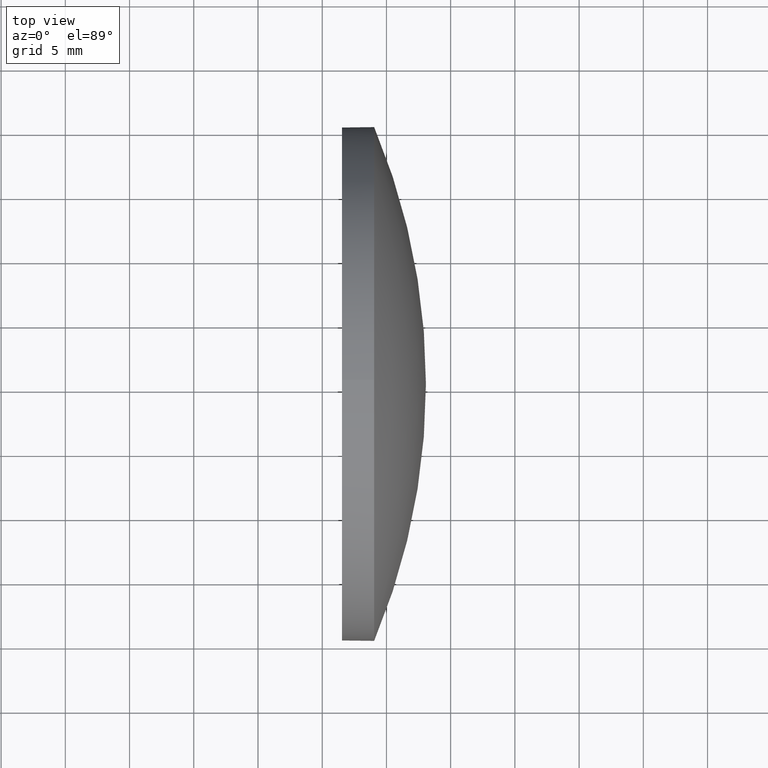
[diagram: clean part render]
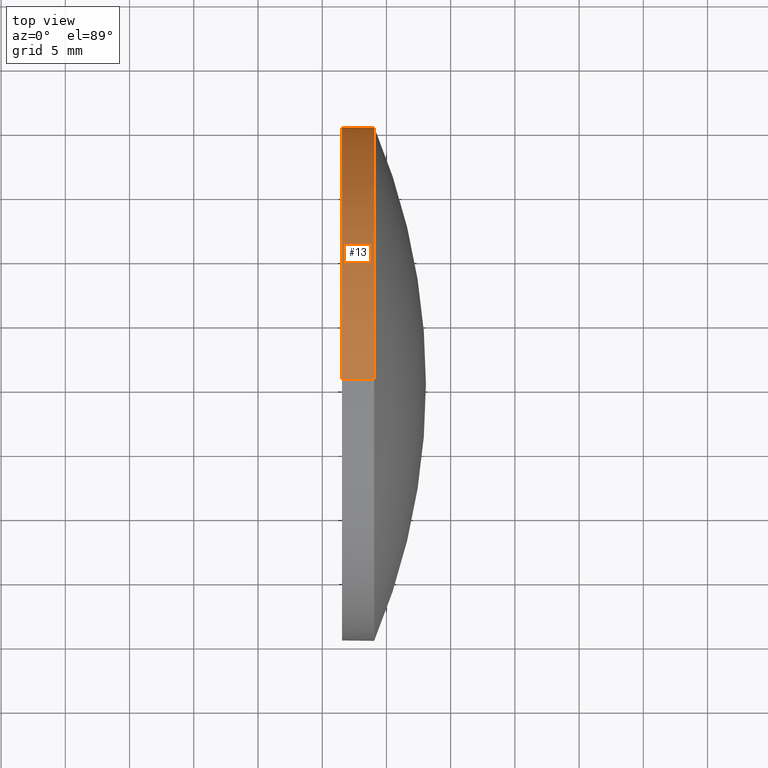
[diagram: same view with one face highlighted and labeled with its STEP entity id]
A machine part, top view. The second image highlights one B-rep face of the part: STEP entity #13.
In plain terms, the highlighted cylindrical surface (partial cylindrical patch) has radius 20 mm, axis along (-1, -0, -0).
Its self-contained STEP definition (entity closure, byte-faithful):
#3 = DIRECTION ( 'NONE',  ( 0.0000000000000000000, 0.0000000000000000000, 1.000000000000000000 ) ) ;
#4 = DIRECTION ( 'NONE',  ( 0.0000000000000000000, 0.0000000000000000000, 1.000000000000000000 ) ) ;
#13 = ADVANCED_FACE ( 'NONE', ( #168 ), #145, .T. ) ;
#14 = VECTOR ( 'NONE', #176, 1000.000000000000000 ) ;
#17 = AXIS2_PLACEMENT_3D ( 'NONE', #85, #162, #3 ) ;
#19 = CARTESIAN_POINT ( 'NONE',  ( 564.0452585807870500, 145.2757761791659700, 2.449293598294695500E-015 ) ) ;
#20 = CARTESIAN_POINT ( 'NONE',  ( 564.0452585807870500, 125.2757761791659600, 20.00000000000001800 ) ) ;
#21 = CARTESIAN_POINT ( 'NONE',  ( 564.0452585807870500, 125.2757761791659600, 0.0000000000000000000 ) ) ;
#24 = VERTEX_POINT ( 'NONE', #19 ) ;
#29 = LINE ( 'NONE', #164, #14 ) ;
#33 = CARTESIAN_POINT ( 'NONE',  ( 561.5452585807870500, 125.2757761791659600, 20.00000000000001800 ) ) ;
#48 = VERTEX_POINT ( 'NONE', #115 ) ;
#52 = CARTESIAN_POINT ( 'NONE',  ( 561.5452585807870500, 125.2757761791659600, -20.00000000000001800 ) ) ;
#55 = ORIENTED_EDGE ( 'NONE', *, *, #112, .T. ) ;
#70 = CIRCLE ( 'NONE', #17, 20.00000000000001800 ) ;
#73 = CARTESIAN_POINT ( 'NONE',  ( 556.8507154002099900, 125.2757761791659600, 0.0000000000000000000 ) ) ;
#74 = CARTESIAN_POINT ( 'NONE',  ( 556.8507154002099900, 125.2757761791659600, 20.00000000000001800 ) ) ;
#75 = VERTEX_POINT ( 'NONE', #20 ) ;
#81 = VERTEX_POINT ( 'NONE', #33 ) ;
#82 = VERTEX_POINT ( 'NONE', #52 ) ;
#85 = CARTESIAN_POINT ( 'NONE',  ( 564.0452585807870500, 125.2757761791659600, 0.0000000000000000000 ) ) ;
#86 = DIRECTION ( 'NONE',  ( -1.000000000000000000, -0.0000000000000000000, -0.0000000000000000000 ) ) ;
#88 = DIRECTION ( 'NONE',  ( -1.000000000000000000, -0.0000000000000000000, -0.0000000000000000000 ) ) ;
#89 = AXIS2_PLACEMENT_3D ( 'NONE', #73, #88, #4 ) ;
#92 = CIRCLE ( 'NONE', #161, 20.00000000000001800 ) ;
#93 = EDGE_LOOP ( 'NONE', ( #156, #109, #114, #137, #55 ) ) ;
#96 = EDGE_CURVE ( 'NONE', #75, #81, #128, .T. ) ;
#102 = EDGE_CURVE ( 'NONE', #24, #48, #70, .T. ) ;
#107 = DIRECTION ( 'NONE',  ( -1.000000000000000000, -0.0000000000000000000, -0.0000000000000000000 ) ) ;
#108 = EDGE_CURVE ( 'NONE', #81, #82, #92, .T. ) ;
#109 = ORIENTED_EDGE ( 'NONE', *, *, #184, .T. ) ;
#112 = EDGE_CURVE ( 'NONE', #75, #24, #172, .T. ) ;
#114 = ORIENTED_EDGE ( 'NONE', *, *, #108, .F. ) ;
#115 = CARTESIAN_POINT ( 'NONE',  ( 564.0452585807870500, 125.2757761791659600, -20.00000000000001800 ) ) ;
#122 = DIRECTION ( 'NONE',  ( 0.0000000000000000000, 0.0000000000000000000, 1.000000000000000000 ) ) ;
#126 = AXIS2_PLACEMENT_3D ( 'NONE', #21, #166, #178 ) ;
#128 = LINE ( 'NONE', #74, #153 ) ;
#131 = CARTESIAN_POINT ( 'NONE',  ( 561.5452585807870500, 125.2757761791659600, 0.0000000000000000000 ) ) ;
#137 = ORIENTED_EDGE ( 'NONE', *, *, #96, .F. ) ;
#145 = CYLINDRICAL_SURFACE ( 'NONE', #89, 20.00000000000001800 ) ;
#153 = VECTOR ( 'NONE', #86, 1000.000000000000000 ) ;
#156 = ORIENTED_EDGE ( 'NONE', *, *, #102, .T. ) ;
#161 = AXIS2_PLACEMENT_3D ( 'NONE', #131, #107, #122 ) ;
#162 = DIRECTION ( 'NONE',  ( -1.000000000000000000, -0.0000000000000000000, -0.0000000000000000000 ) ) ;
#164 = CARTESIAN_POINT ( 'NONE',  ( 556.8507154002099900, 125.2757761791659600, -20.00000000000001800 ) ) ;
#166 = DIRECTION ( 'NONE',  ( -1.000000000000000000, -0.0000000000000000000, -0.0000000000000000000 ) ) ;
#168 = FACE_OUTER_BOUND ( 'NONE', #93, .T. ) ;
#172 = CIRCLE ( 'NONE', #126, 20.00000000000001800 ) ;
#176 = DIRECTION ( 'NONE',  ( -1.000000000000000000, -0.0000000000000000000, -0.0000000000000000000 ) ) ;
#178 = DIRECTION ( 'NONE',  ( 0.0000000000000000000, 0.0000000000000000000, 1.000000000000000000 ) ) ;
#184 = EDGE_CURVE ( 'NONE', #48, #82, #29, .T. ) ;